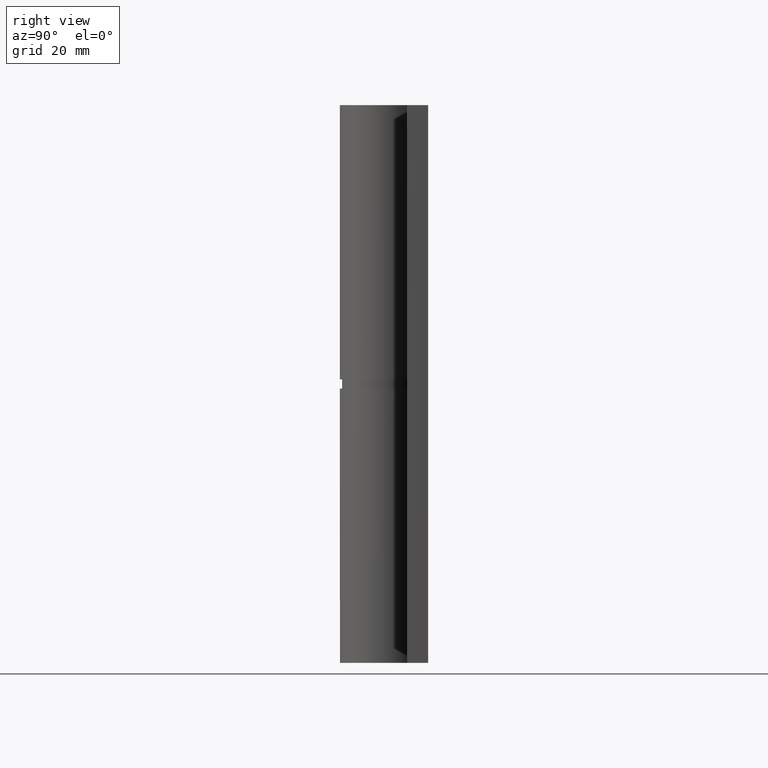
[diagram: clean part render]
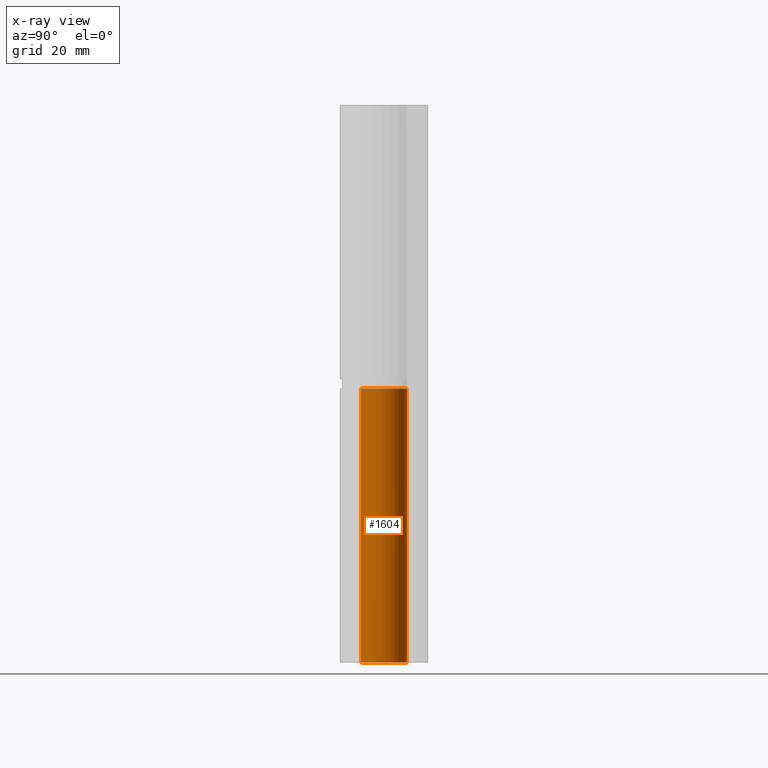
[diagram: x-ray — body ghosted, one internal face saturated and labeled with its STEP entity id]
A machine part, right view, then the same camera in x-ray: the body is ghosted and one INTERNAL B-rep face — a face not visible from any outside direction — is saturated and labeled: STEP entity #1604.
In plain terms, the highlighted face is a freeform B-spline surface patch.
Its self-contained STEP definition (entity closure, byte-faithful):
#1314=CARTESIAN_POINT('',(-4.267622743181070,2.605263157894735,59.0));
#1315=VERTEX_POINT('',#1314);
#1316=CARTESIAN_POINT('',(-9.184548E-016,5.0,59.0));
#1317=VERTEX_POINT('',#1316);
#1318=CARTESIAN_POINT('',(-4.267622743181073,2.605263157894737,59.0));
#1319=CARTESIAN_POINT('',(-6.279409924410270,-0.690199990630991,59.000000000000007));
#1320=CARTESIAN_POINT('',(-3.599859763297249,-3.470015804660474,59.0));
#1321=CARTESIAN_POINT('',(-0.920309602184224,-6.249831618689959,59.000000000000007));
#1322=CARTESIAN_POINT('',(2.446802424647964,-4.360407996361905,59.0));
#1323=CARTESIAN_POINT('',(5.813914451480151,-2.470984374033852,59.000000000000007));
#1324=CARTESIAN_POINT('',(4.837460076414561,1.264507812983070,59.0));
#1325=CARTESIAN_POINT('',(3.861005701348971,5.000000000000001,59.000000000000007));
#1326=CARTESIAN_POINT('',(0.0,5.0,59.0));
#1334=(BOUNDED_CURVE()B_SPLINE_CURVE(2,(#1318,#1319,#1320,#1321,#1322,#1323,#1324,#1325,#1326),.UNSPECIFIED.,.F.,.U.)B_SPLINE_CURVE_WITH_KNOTS((3,2,2,2,3),(0.0,0.250000000000000,0.500000000000000,0.750000000000000,1.0),.UNSPECIFIED.)CURVE()GEOMETRIC_REPRESENTATION_ITEM()RATIONAL_B_SPLINE_CURVE((1.0,0.791486437848626,1.0,0.791486437848626,1.0,0.791486437848626,1.0,0.791486437848626,1.0))REPRESENTATION_ITEM(''));
#1335=EDGE_CURVE('',#1315,#1317,#1334,.T.);
#1386=CARTESIAN_POINT('',(-9.184548E-016,5.0,0.0));
#1387=VERTEX_POINT('',#1386);
#1428=CARTESIAN_POINT('',(-4.267622743181070,2.605263157894740,0.0));
#1429=VERTEX_POINT('',#1428);
#1435=CARTESIAN_POINT('',(0.0,5.0,0.0));
#1436=CARTESIAN_POINT('',(3.861005701348970,4.999999999999999,0.0));
#1437=CARTESIAN_POINT('',(4.837460076414561,1.264507812983072,0.0));
#1438=CARTESIAN_POINT('',(5.813914451480152,-2.470984374033854,0.0));
#1439=CARTESIAN_POINT('',(2.446802424647963,-4.360407996361905,0.0));
#1440=CARTESIAN_POINT('',(-0.920309602184226,-6.249831618689957,0.0));
#1441=CARTESIAN_POINT('',(-3.599859763297249,-3.470015804660474,0.0));
#1442=CARTESIAN_POINT('',(-6.279409924410275,-0.690199990630988,0.0));
#1443=CARTESIAN_POINT('',(-4.267622743181070,2.605263157894741,0.0));
#1451=(BOUNDED_CURVE()B_SPLINE_CURVE(2,(#1435,#1436,#1437,#1438,#1439,#1440,#1441,#1442,#1443),.UNSPECIFIED.,.F.,.U.)B_SPLINE_CURVE_WITH_KNOTS((3,2,2,2,3),(0.0,0.250000000000000,0.500000000000000,0.750000000000000,1.0),.UNSPECIFIED.)CURVE()GEOMETRIC_REPRESENTATION_ITEM()RATIONAL_B_SPLINE_CURVE((1.0,0.791486437848626,1.0,0.791486437848626,1.0,0.791486437848626,1.0,0.791486437848626,1.0))REPRESENTATION_ITEM(''));
#1452=EDGE_CURVE('',#1387,#1429,#1451,.T.);
#1563=CARTESIAN_POINT('',(-4.267622743181070,2.605263157894740,0.0));
#1564=CARTESIAN_POINT('',(-4.267622743181070,2.605263157894735,59.0));
#1565=QUASI_UNIFORM_CURVE('',1,(#1563,#1564),.UNSPECIFIED.,.F.,.U.);
#1566=EDGE_CURVE('',#1429,#1315,#1565,.T.);
#1572=CARTESIAN_POINT('',(-0.043632677491866,4.999809615320855,-1.475000000000001));
#1573=CARTESIAN_POINT('',(-0.043632677491866,4.999809615320855,60.511875000000011));
#1574=CARTESIAN_POINT('',(6.094026523264110,5.053372155710582,-1.475000000000001));
#1575=CARTESIAN_POINT('',(6.094026523264110,5.053372155710582,60.511875000000018));
#1576=CARTESIAN_POINT('',(4.905339951494462,-0.968318109028381,-1.475000000000001));
#1577=CARTESIAN_POINT('',(4.905339951494462,-0.968318109028381,60.511875000000011));
#1578=CARTESIAN_POINT('',(3.716653379724812,-6.990008373767346,-1.475000000000001));
#1579=CARTESIAN_POINT('',(3.716653379724812,-6.990008373767346,60.511875000000018));
#1580=CARTESIAN_POINT('',(-1.940259195417263,-4.608187740815119,-1.475000000000001));
#1581=CARTESIAN_POINT('',(-1.940259195417263,-4.608187740815119,60.511875000000011));
#1582=CARTESIAN_POINT('',(-7.597171770559339,-2.226367107862890,-1.475000000000001));
#1583=CARTESIAN_POINT('',(-7.597171770559339,-2.226367107862890,60.511875000000018));
#1584=CARTESIAN_POINT('',(-4.120630943110079,2.832031184624161,-1.475000000000001));
#1585=CARTESIAN_POINT('',(-4.120630943110079,2.832031184624161,60.511875000000011));
#1593=(BOUNDED_SURFACE()B_SPLINE_SURFACE(1,2,((#1572,#1574,#1576,#1578,#1580,#1582,#1584),(#1573,#1575,#1577,#1579,#1581,#1583,#1585)),.UNSPECIFIED.,.F.,.F.,.U.)B_SPLINE_SURFACE_WITH_KNOTS((2,2),(3,2,2,3),(0.0,61.986875000000012),(0.0,9.503828690329581,19.007657380659161,28.511486070988742),.UNSPECIFIED.)GEOMETRIC_REPRESENTATION_ITEM()RATIONAL_B_SPLINE_SURFACE(((1.0,0.631578351302498,1.0,0.631578351302498,1.0,0.631578351302498,1.0),(1.0,0.631578351302498,1.0,0.631578351302498,1.0,0.631578351302498,1.0)))REPRESENTATION_ITEM('')SURFACE());
#1594=ORIENTED_EDGE('',*,*,#1566,.T.);
#1595=ORIENTED_EDGE('',*,*,#1335,.T.);
#1596=CARTESIAN_POINT('',(-9.184548E-016,5.0,0.0));
#1597=CARTESIAN_POINT('',(-9.184548E-016,5.0,59.0));
#1598=QUASI_UNIFORM_CURVE('',1,(#1596,#1597),.UNSPECIFIED.,.F.,.U.);
#1599=EDGE_CURVE('',#1387,#1317,#1598,.T.);
#1600=ORIENTED_EDGE('',*,*,#1599,.F.);
#1601=ORIENTED_EDGE('',*,*,#1452,.T.);
#1602=EDGE_LOOP('',(#1594,#1595,#1600,#1601));
#1603=FACE_OUTER_BOUND('',#1602,.T.);
#1604=ADVANCED_FACE('',(#1603),#1593,.F.);